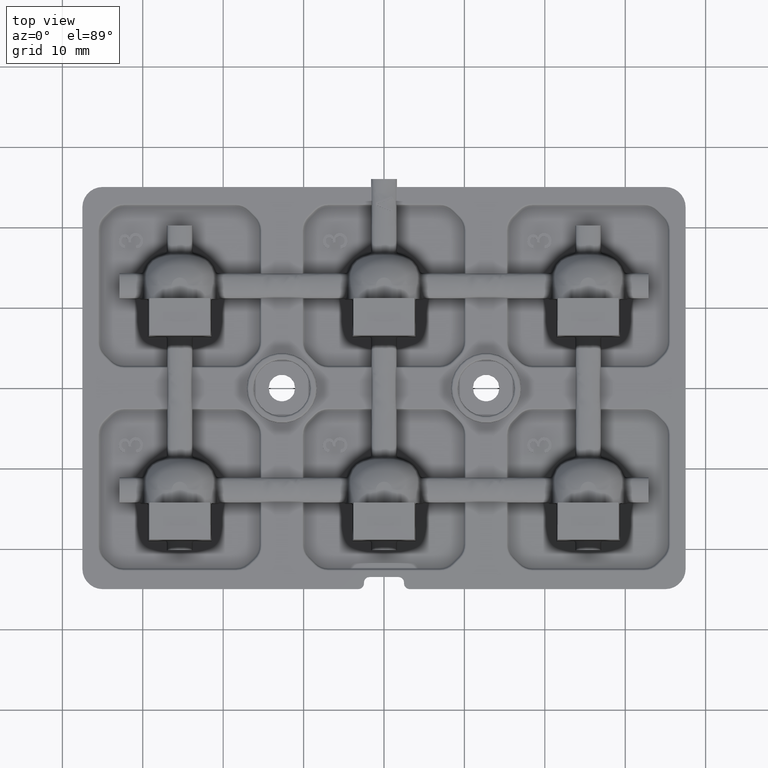
[diagram: clean part render]
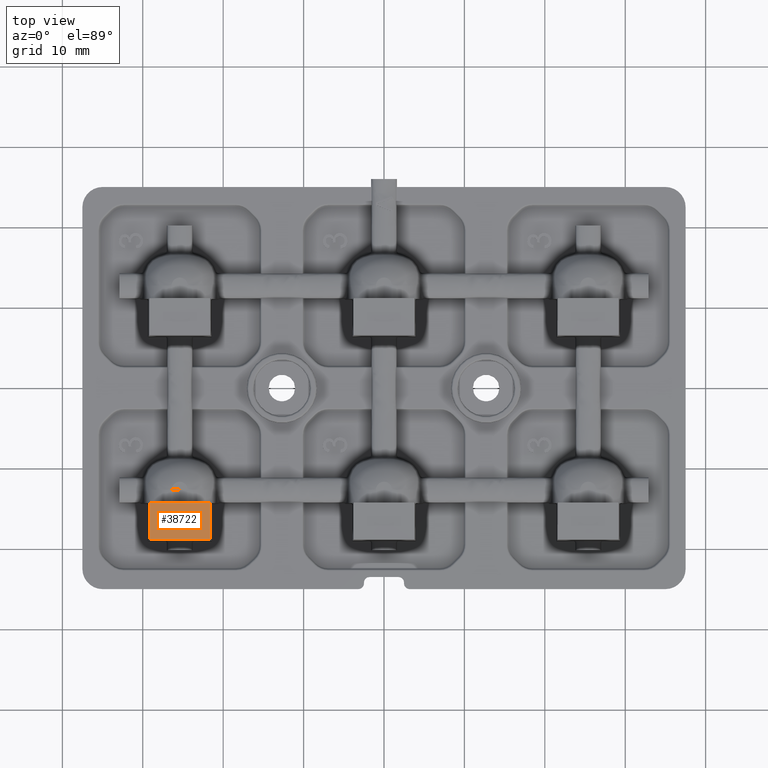
[diagram: same view with one face highlighted and labeled with its STEP entity id]
A machine part, top view. The second image highlights one B-rep face of the part: STEP entity #38722.
In plain terms, the highlighted face is a freeform B-spline surface patch.
Its self-contained STEP definition (entity closure, byte-faithful):
#112 = CARTESIAN_POINT ( 'NONE',  ( -25.39999999999999900, -17.90116080874021900, 5.217497808111596100 ) ) ;
#269 = CARTESIAN_POINT ( 'NONE',  ( -20.39999999999999900, -13.39703286411306800, 5.308529922256541400 ) ) ;
#437 = CARTESIAN_POINT ( 'NONE',  ( -17.89999999999999900, -19.09924536538164800, 5.264683525949293700 ) ) ;
#1486 = CARTESIAN_POINT ( 'NONE',  ( -26.66617108730749300, -14.30000000000000200, 5.243186649391616600 ) ) ;
#1923 = EDGE_CURVE ( 'NONE', #11643, #36374, #2330, .T. ) ;
#2330 = B_SPLINE_CURVE_WITH_KNOTS ( 'NONE', 3,
 ( #25045, #21094, #44803, #29052, #5277, #33012 ),
 .UNSPECIFIED., .F., .F.,
 ( 4, 2, 4 ),
 ( 0.0000000000000000000, 0.003799682599785023300, 0.007599365199570046500 ),
 .UNSPECIFIED. ) ;
#2843 = CARTESIAN_POINT ( 'NONE',  ( -29.19829937952975700, -14.30000076388162900, 5.271582733034067700 ) ) ;
#3005 = VERTEX_POINT ( 'NONE', #37073 ) ;
#3321 = EDGE_CURVE ( 'NONE', #3005, #11643, #7113, .T. ) ;
#3630 = CARTESIAN_POINT ( 'NONE',  ( -21.60170277760797200, -14.30000076881098500, 5.271616364205776500 ) ) ;
#3697 = CARTESIAN_POINT ( 'NONE',  ( -29.19922112953488700, -17.14995789821417200, 5.249554588496208900 ) ) ;
#3728 = CARTESIAN_POINT ( 'NONE',  ( -32.89999999999999900, -17.90045965441334300, 5.273089690299645600 ) ) ;
#3893 = CARTESIAN_POINT ( 'NONE',  ( -27.90000000000000200, -13.39711628439250300, 5.252932264764999600 ) ) ;
#4045 = CARTESIAN_POINT ( 'NONE',  ( -25.39999999999999900, -19.09960585813933100, 5.209086260903348800 ) ) ;
#4218 = CARTESIAN_POINT ( 'NONE',  ( -20.39999999999999900, -16.62368024301176900, 5.279979393257548300 ) ) ;
#5123 = CARTESIAN_POINT ( 'NONE',  ( -21.60170277760797200, -14.30000076881098500, 5.271616364205776500 ) ) ;
#5277 = CARTESIAN_POINT ( 'NONE',  ( -27.93308740163962200, -18.90403870600817300, 5.224903176701732700 ) ) ;
#5466 = CARTESIAN_POINT ( 'NONE',  ( -29.19829937952975700, -14.30000076388162900, 5.271582733034067700 ) ) ;
#6727 = B_SPLINE_SURFACE_WITH_KNOTS ( 'NONE', 3, 3, ( 
 ( #15538, #23534, #51147, #27452, #3728, #31438, #7717, #35438 ),
 ( #11717, #39401, #15702, #43395, #19711, #47370, #23687, #51316 ),
 ( #27621, #3893, #31614, #7888, #35594, #11883, #39574, #15862 ),
 ( #43560, #19877, #47539, #23839, #112, #27791, #4045, #31776 ),
 ( #8059, #35767, #12043, #39738, #16039, #43717, #20027, #47706 ),
 ( #24013, #269, #27965, #4218, #31937, #8221, #35939, #12216 ),
 ( #39890, #16206, #43895, #20188, #47863, #24177, #437, #28124 ) ),
 .UNSPECIFIED., .F., .F., .F.,
 ( 4, 3, 4 ),
 ( 4, 1, 1, 1, 1, 4 ),
 ( 0.0000000000000000000, 0.5000000000000000000, 1.000000000000000000 ),
 ( 0.0000000000000000000, 0.2800000000000000300, 0.5599999999999999400, 0.7066666666666666700, 0.8533333333333330600, 1.000000000000000000 ),
 .UNSPECIFIED. ) ;
#7113 = B_SPLINE_CURVE_WITH_KNOTS ( 'NONE', 3,
 ( #3630, #47115, #35337, #11610, #39295, #15604, #43293 ),
 .UNSPECIFIED., .F., .F.,
 ( 4, 3, 4 ),
 ( 4.336808689942017700E-019, 0.001973207275934851600, 0.004603712864690814900 ),
 .UNSPECIFIED. ) ;
#7686 = CARTESIAN_POINT ( 'NONE',  ( -29.19957946312697700, -18.90359762020790100, 5.238885942064935200 ) ) ;
#7717 = CARTESIAN_POINT ( 'NONE',  ( -32.89999999999999900, -19.09924536538164800, 5.264683525949293700 ) ) ;
#7888 = CARTESIAN_POINT ( 'NONE',  ( -27.90000000000000200, -16.62437820309108000, 5.224387673731363300 ) ) ;
#8059 = CARTESIAN_POINT ( 'NONE',  ( -22.89999999999999900, -12.69999999999999600, 5.265690061331874000 ) ) ;
#8221 = CARTESIAN_POINT ( 'NONE',  ( -20.40000000000000200, -18.75420469029698700, 5.267646344363018200 ) ) ;
#9848 = EDGE_CURVE ( 'NONE', #22417, #36374, #20083, .T. ) ;
#11610 = CARTESIAN_POINT ( 'NONE',  ( -21.60097922344079900, -16.27314015736226000, 5.255291947053971800 ) ) ;
#11643 = VERTEX_POINT ( 'NONE', #26040 ) ;
#11717 = CARTESIAN_POINT ( 'NONE',  ( -30.39999999999999500, -12.69999999999999600, 5.321286192164265600 ) ) ;
#11883 = CARTESIAN_POINT ( 'NONE',  ( -27.90000000000000200, -18.75490289653118100, 5.212054626918871700 ) ) ;
#12043 = CARTESIAN_POINT ( 'NONE',  ( -22.89999999999999900, -14.76522484542156400, 5.236782027440267700 ) ) ;
#12216 = CARTESIAN_POINT ( 'NONE',  ( -20.39999999999999900, -19.29975840653330000, 5.261885535654490000 ) ) ;
#15505 = CARTESIAN_POINT ( 'NONE',  ( -29.19869657974056700, -14.95769909905271800, 5.264575729265653900 ) ) ;
#15538 = CARTESIAN_POINT ( 'NONE',  ( -32.89999999999999900, -12.69999999999999600, 5.321286192164265600 ) ) ;
#15604 = CARTESIAN_POINT ( 'NONE',  ( -21.60066750742747000, -18.02679342049680900, 5.246365568343786200 ) ) ;
#15702 = CARTESIAN_POINT ( 'NONE',  ( -30.39999999999999500, -14.76460597301931100, 5.292374965173558500 ) ) ;
#15862 = CARTESIAN_POINT ( 'NONE',  ( -27.90000000000000200, -19.29999999999999000, 5.206289929747823600 ) ) ;
#16039 = CARTESIAN_POINT ( 'NONE',  ( -22.89999999999999900, -17.90116080874021900, 5.217497808111596100 ) ) ;
#16206 = CARTESIAN_POINT ( 'NONE',  ( -17.89999999999999900, -13.39694944383363100, 5.308531448915694300 ) ) ;
#19711 = CARTESIAN_POINT ( 'NONE',  ( -30.39999999999999500, -17.90046587541907300, 5.273089607870769400 ) ) ;
#19877 = CARTESIAN_POINT ( 'NONE',  ( -25.39999999999999900, -13.39711628439250300, 5.252932264764999600 ) ) ;
#20027 = CARTESIAN_POINT ( 'NONE',  ( -22.89999999999999900, -19.09960585813933100, 5.209086260903348800 ) ) ;
#20083 = B_SPLINE_CURVE_WITH_KNOTS ( 'NONE', 3,
 ( #43187, #15505, #51117, #27426, #3697, #31403, #7686 ),
 .UNSPECIFIED., .F., .F.,
 ( 4, 3, 4 ),
 ( 6.505213034913026600E-019, 0.001973207275932683200, 0.004603712259375275900 ),
 .UNSPECIFIED. ) ;
#20188 = CARTESIAN_POINT ( 'NONE',  ( -17.89999999999999900, -16.62367903760284800, 5.279979432603769700 ) ) ;
#20225 = ORIENTED_EDGE ( 'NONE', *, *, #9848, .T. ) ;
#21094 = CARTESIAN_POINT ( 'NONE',  ( -22.86691599451261700, -18.90403870720994600, 5.224903138604225300 ) ) ;
#21168 = ORIENTED_EDGE ( 'NONE', *, *, #49280, .T. ) ;
#22417 = VERTEX_POINT ( 'NONE', #2843 ) ;
#23534 = CARTESIAN_POINT ( 'NONE',  ( -32.89999999999999900, -13.39694944383363100, 5.308531448915694300 ) ) ;
#23687 = CARTESIAN_POINT ( 'NONE',  ( -30.39999999999999500, -19.09930481502714300, 5.264682696379654900 ) ) ;
#23839 = CARTESIAN_POINT ( 'NONE',  ( -25.39999999999999900, -16.62437820309108000, 5.224387673731363300 ) ) ;
#24013 = CARTESIAN_POINT ( 'NONE',  ( -20.39999999999999900, -12.69999999999999600, 5.321286192164265600 ) ) ;
#24177 = CARTESIAN_POINT ( 'NONE',  ( -17.89999999999999900, -18.75423194614669200, 5.267645965282067500 ) ) ;
#24658 = ORIENTED_EDGE ( 'NONE', *, *, #1923, .F. ) ;
#25045 = CARTESIAN_POINT ( 'NONE',  ( -21.60042384081441100, -18.90359781900082600, 5.238879226568168500 ) ) ;
#25221 = CARTESIAN_POINT ( 'NONE',  ( -24.13383076652501200, -14.30000000000000600, 5.243186635473026800 ) ) ;
#26040 = CARTESIAN_POINT ( 'NONE',  ( -21.60042384081441100, -18.90359781900082600, 5.238879226568168500 ) ) ;
#27426 = CARTESIAN_POINT ( 'NONE',  ( -29.19902077663939700, -16.27314050833306800, 5.255291944757434700 ) ) ;
#27452 = CARTESIAN_POINT ( 'NONE',  ( -32.89999999999999900, -16.62367903760284800, 5.279979432603766100 ) ) ;
#27621 = CARTESIAN_POINT ( 'NONE',  ( -27.90000000000000200, -12.69999999999999600, 5.265690061331874000 ) ) ;
#27791 = CARTESIAN_POINT ( 'NONE',  ( -25.39999999999999900, -18.75490289653118100, 5.212054626918871700 ) ) ;
#27965 = CARTESIAN_POINT ( 'NONE',  ( -20.39999999999999900, -14.76460597301931100, 5.292374965173558500 ) ) ;
#28124 = CARTESIAN_POINT ( 'NONE',  ( -17.89999999999999900, -19.29975840653330000, 5.261885535654490000 ) ) ;
#29052 = CARTESIAN_POINT ( 'NONE',  ( -26.66659786174146900, -18.90448889234967200, 5.210631544552205300 ) ) ;
#29228 = CARTESIAN_POINT ( 'NONE',  ( -27.93223489939820700, -14.29999999999999700, 5.257445075105475300 ) ) ;
#29650 = ORIENTED_EDGE ( 'NONE', *, *, #3321, .F. ) ;
#31403 = CARTESIAN_POINT ( 'NONE',  ( -29.19933249262803400, -18.02679336791571500, 5.246365566754303900 ) ) ;
#31438 = CARTESIAN_POINT ( 'NONE',  ( -32.89999999999999900, -18.75423194614669200, 5.267645965282067500 ) ) ;
#31614 = CARTESIAN_POINT ( 'NONE',  ( -27.90000000000000200, -14.76522484542156400, 5.236782027440267700 ) ) ;
#31776 = CARTESIAN_POINT ( 'NONE',  ( -25.39999999999999900, -19.29999999999999000, 5.206289929747823600 ) ) ;
#31937 = CARTESIAN_POINT ( 'NONE',  ( -20.39999999999999900, -17.90046587541907300, 5.273089607870769400 ) ) ;
#33012 = CARTESIAN_POINT ( 'NONE',  ( -29.19957946312697700, -18.90359762020790100, 5.238885942064935200 ) ) ;
#35337 = CARTESIAN_POINT ( 'NONE',  ( -21.60112951294177800, -15.61541849621922000, 5.259595675269759200 ) ) ;
#35438 = CARTESIAN_POINT ( 'NONE',  ( -32.89999999999999900, -19.29975840653330000, 5.261885535654487400 ) ) ;
#35594 = CARTESIAN_POINT ( 'NONE',  ( -27.90000000000000200, -17.90116080874021900, 5.217497808111596100 ) ) ;
#35767 = CARTESIAN_POINT ( 'NONE',  ( -22.89999999999999900, -13.39711628439250300, 5.252932264764999600 ) ) ;
#35939 = CARTESIAN_POINT ( 'NONE',  ( -20.39999999999999900, -19.09930481502714300, 5.264682696379654900 ) ) ;
#36374 = VERTEX_POINT ( 'NONE', #39013 ) ;
#36995 = CARTESIAN_POINT ( 'NONE',  ( -22.86776690149968900, -14.29999999999999700, 5.257445054913658200 ) ) ;
#37073 = CARTESIAN_POINT ( 'NONE',  ( -21.60170277760797200, -14.30000076881098500, 5.271616364205776500 ) ) ;
#38722 = ADVANCED_FACE ( 'NONE', ( #48153 ), #6727, .F. ) ;
#39013 = CARTESIAN_POINT ( 'NONE',  ( -29.19957946312697700, -18.90359762020790100, 5.238885942064935200 ) ) ;
#39295 = CARTESIAN_POINT ( 'NONE',  ( -21.60077887048592200, -17.14995774900830800, 5.249554589092084300 ) ) ;
#39401 = CARTESIAN_POINT ( 'NONE',  ( -30.39999999999999500, -13.39703286411306800, 5.308529922256541400 ) ) ;
#39574 = CARTESIAN_POINT ( 'NONE',  ( -27.90000000000000200, -19.09960585813933100, 5.209086260903348800 ) ) ;
#39738 = CARTESIAN_POINT ( 'NONE',  ( -22.89999999999999500, -16.62437820309108000, 5.224387673731363300 ) ) ;
#39890 = CARTESIAN_POINT ( 'NONE',  ( -17.89999999999999900, -12.69999999999999600, 5.321286192164265600 ) ) ;
#39891 = B_SPLINE_CURVE_WITH_KNOTS ( 'NONE', 3,
 ( #5123, #36995, #25221, #1486, #29228, #5466 ),
 .UNSPECIFIED., .F., .F.,
 ( 4, 2, 4 ),
 ( 2.602085213965210600E-018, 0.003798404898527590900, 0.007596809797055179200 ),
 .UNSPECIFIED. ) ;
#41519 = EDGE_LOOP ( 'NONE', ( #21168, #20225, #24658, #29650 ) ) ;
#43187 = CARTESIAN_POINT ( 'NONE',  ( -29.19829937952975700, -14.30000076388162900, 5.271582733034067700 ) ) ;
#43293 = CARTESIAN_POINT ( 'NONE',  ( -21.60042384081441100, -18.90359781900082600, 5.238879226568168500 ) ) ;
#43395 = CARTESIAN_POINT ( 'NONE',  ( -30.40000000000000200, -16.62368024301176900, 5.279979393257548300 ) ) ;
#43560 = CARTESIAN_POINT ( 'NONE',  ( -25.39999999999999900, -12.69999999999999600, 5.265690061331874000 ) ) ;
#43717 = CARTESIAN_POINT ( 'NONE',  ( -22.89999999999999900, -18.75490289653118100, 5.212054626918871700 ) ) ;
#43895 = CARTESIAN_POINT ( 'NONE',  ( -17.89999999999999900, -14.76464419440379700, 5.292374259485726800 ) ) ;
#44803 = CARTESIAN_POINT ( 'NONE',  ( -24.13340558757838400, -18.90448889316708000, 5.210631518639423200 ) ) ;
#47115 = CARTESIAN_POINT ( 'NONE',  ( -21.60130342036163100, -14.95769874808383400, 5.264575732192416700 ) ) ;
#47370 = CARTESIAN_POINT ( 'NONE',  ( -30.39999999999999500, -18.75420469029698700, 5.267646344363021700 ) ) ;
#47539 = CARTESIAN_POINT ( 'NONE',  ( -25.39999999999999900, -14.76522484542156400, 5.236782027440267700 ) ) ;
#47706 = CARTESIAN_POINT ( 'NONE',  ( -22.89999999999999900, -19.29999999999999000, 5.206289929747823600 ) ) ;
#47863 = CARTESIAN_POINT ( 'NONE',  ( -17.89999999999999900, -17.90045965441334300, 5.273089690299645600 ) ) ;
#48153 = FACE_OUTER_BOUND ( 'NONE', #41519, .T. ) ;
#49280 = EDGE_CURVE ( 'NONE', #3005, #22417, #39891, .T. ) ;
#51117 = CARTESIAN_POINT ( 'NONE',  ( -29.19887048714838700, -15.61541884718888300, 5.259595672687853900 ) ) ;
#51147 = CARTESIAN_POINT ( 'NONE',  ( -32.89999999999999900, -14.76464419440379700, 5.292374259485726800 ) ) ;
#51316 = CARTESIAN_POINT ( 'NONE',  ( -30.39999999999999500, -19.29975840653330000, 5.261885535654487400 ) ) ;